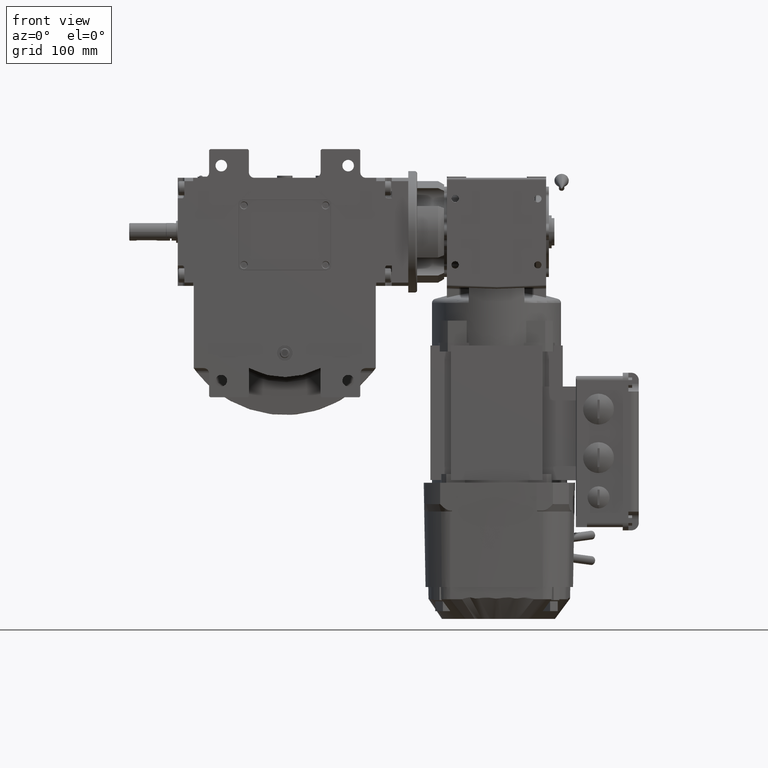
[diagram: clean part render]
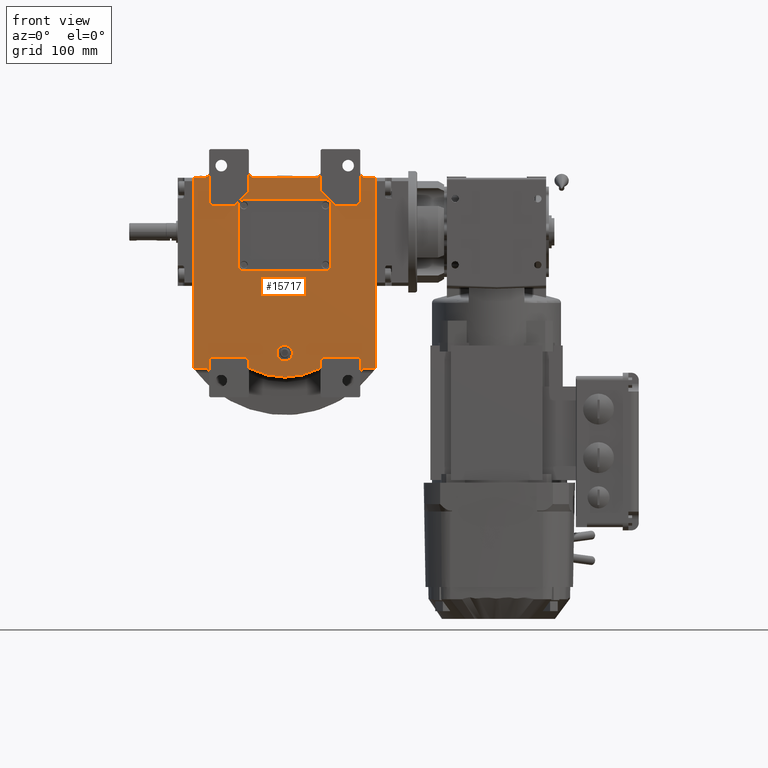
[diagram: same view with one face highlighted and labeled with its STEP entity id]
A machine part, front view. The second image highlights one B-rep face of the part: STEP entity #15717.
In plain terms, the highlighted planar face has unit normal (0, 1, 0).
Its self-contained STEP definition (entity closure, byte-faithful):
#612 = CIRCLE ( 'NONE', #55937, 5.000000000000004441 ) ;
#704 = EDGE_CURVE ( 'NONE', #13755, #52883, #28534, .T. ) ;
#706 = VECTOR ( 'NONE', #95900, 1000.000000000000000 ) ;
#1094 = CARTESIAN_POINT ( 'NONE',  ( -27.49999999999934630, -40.50000000000000000, 119.0000000000000000 ) ) ;
#1477 = VERTEX_POINT ( 'NONE', #34407 ) ;
#1659 = EDGE_CURVE ( 'NONE', #42896, #34868, #5289, .T. ) ;
#1828 = VERTEX_POINT ( 'NONE', #97926 ) ;
#2871 = EDGE_CURVE ( 'NONE', #18281, #86461, #612, .T. ) ;
#3174 = VERTEX_POINT ( 'NONE', #3788 ) ;
#3341 = EDGE_CURVE ( 'NONE', #1828, #23365, #74208, .T. ) ;
#3403 = VECTOR ( 'NONE', #47757, 1000.000000000000114 ) ;
#3512 = DIRECTION ( 'NONE',  ( -1.000000000000000000, 0.000000000000000000, 0.000000000000000000 ) ) ;
#3788 = CARTESIAN_POINT ( 'NONE',  ( 7.000000000000000000, -40.50000000000000000, -45.00000000000000000 ) ) ;
#3946 = CARTESIAN_POINT ( 'NONE',  ( -35.50000000000000000, -40.50000000000000000, -49.00000000000000000 ) ) ;
#4246 = CARTESIAN_POINT ( 'NONE',  ( 0.000000000000000000, -40.50000000000000000, 0.000000000000000000 ) ) ;
#5075 = CARTESIAN_POINT ( 'NONE',  ( 73.50000000000000000, -40.50000000000000000, -58.50000000000000000 ) ) ;
#5092 = LINE ( 'NONE', #36238, #70887 ) ;
#5106 = CARTESIAN_POINT ( 'NONE',  ( 32.50000000000000000, -40.50000000000000000, -52.00000000000000000 ) ) ;
#5254 = FACE_BOUND ( 'NONE', #48036, .T. ) ;
#5289 = LINE ( 'NONE', #41820, #13432 ) ;
#5448 = DIRECTION ( 'NONE',  ( 3.469446951953611033E-15, 0.000000000000000000, 1.000000000000000000 ) ) ;
#5611 = DIRECTION ( 'NONE',  ( 0.000000000000000000, 1.000000000000000000, 0.000000000000000000 ) ) ;
#6157 = EDGE_CURVE ( 'NONE', #8422, #43484, #75035, .T. ) ;
#6552 = ORIENTED_EDGE ( 'NONE', *, *, #64135, .F. ) ;
#6723 = EDGE_CURVE ( 'NONE', #76476, #23604, #77409, .T. ) ;
#7166 = CARTESIAN_POINT ( 'NONE',  ( 38.00000000000000000, -40.50000000000000000, 90.00000000000000000 ) ) ;
#8097 = CARTESIAN_POINT ( 'NONE',  ( -82.50000000000000000, -40.50000000000000000, -58.50000000000000000 ) ) ;
#8202 = ORIENTED_EDGE ( 'NONE', *, *, #16128, .F. ) ;
#8301 = EDGE_CURVE ( 'NONE', #39653, #19959, #31895, .T. ) ;
#8422 = VERTEX_POINT ( 'NONE', #19413 ) ;
#9866 = AXIS2_PLACEMENT_3D ( 'NONE', #27698, #20040, #61222 ) ;
#10457 = CIRCLE ( 'NONE', #23517, 5.000000000000004441 ) ;
#10478 = CIRCLE ( 'NONE', #72382, 4.999999999999997335 ) ;
#10839 = DIRECTION ( 'NONE',  ( -0.4628475282206227504, 0.000000000000000000, -0.8864379084967315414 ) ) ;
#10904 = DIRECTION ( 'NONE',  ( 0.000000000000000000, 1.000000000000000000, 0.000000000000000000 ) ) ;
#11249 = VERTEX_POINT ( 'NONE', #87641 ) ;
#11509 = AXIS2_PLACEMENT_3D ( 'NONE', #34271, #65394, #54523 ) ;
#11754 = VERTEX_POINT ( 'NONE', #38597 ) ;
#12053 = CARTESIAN_POINT ( 'NONE',  ( 38.00000000000000000, -40.50000000000000000, 30.00000000000000000 ) ) ;
#12075 = VECTOR ( 'NONE', #84942, 1000.000000000000000 ) ;
#12431 = EDGE_CURVE ( 'NONE', #86612, #3174, #16413, .T. ) ;
#12463 = AXIS2_PLACEMENT_3D ( 'NONE', #7166, #30134, #38294 ) ;
#12620 = ORIENTED_EDGE ( 'NONE', *, *, #6157, .T. ) ;
#12770 = CARTESIAN_POINT ( 'NONE',  ( 32.50000000000000000, -40.50000000000000000, -52.00000000000000000 ) ) ;
#12905 = CARTESIAN_POINT ( 'NONE',  ( -82.50000000000000000, -40.50000000000000000, 114.0000000000000000 ) ) ;
#13351 = VERTEX_POINT ( 'NONE', #99621 ) ;
#13432 = VECTOR ( 'NONE', #17852, 1000.000000000000000 ) ;
#13446 = ORIENTED_EDGE ( 'NONE', *, *, #79410, .T. ) ;
#13755 = VERTEX_POINT ( 'NONE', #85600 ) ;
#13823 = DIRECTION ( 'NONE',  ( 0.7071067811865474617, 0.000000000000000000, -0.7071067811865474617 ) ) ;
#14765 = ORIENTED_EDGE ( 'NONE', *, *, #90584, .F. ) ;
#15717 = ADVANCED_FACE ( 'NONE', ( #5254, #28249, #36407 ), #82354, .F. ) ;
#15998 = CARTESIAN_POINT ( 'NONE',  ( -68.50000000000000000, -40.50000000000000000, -50.00000000000000000 ) ) ;
#16128 = EDGE_CURVE ( 'NONE', #39653, #11754, #60250, .T. ) ;
#16338 = CARTESIAN_POINT ( 'NONE',  ( 68.50000000000000000, -40.50000000000000000, 119.0000000000000000 ) ) ;
#16412 = EDGE_LOOP ( 'NONE', ( #57634, #34677, #92000, #19398, #24635, #99576, #92109, #17602 ) ) ;
#16413 = CIRCLE ( 'NONE', #32747, 7.000000000000000000 ) ;
#16462 = DIRECTION ( 'NONE',  ( 0.000000000000000000, 1.000000000000000000, 0.000000000000000000 ) ) ;
#16804 = VERTEX_POINT ( 'NONE', #90957 ) ;
#16898 = LINE ( 'NONE', #73494, #67949 ) ;
#16978 = CARTESIAN_POINT ( 'NONE',  ( -73.50000000000000000, -40.50000000000000000, -63.50000000000000000 ) ) ;
#17025 = CARTESIAN_POINT ( 'NONE',  ( -32.50000000000000000, -40.50000000000000000, -58.56853585160510534 ) ) ;
#17269 = VECTOR ( 'NONE', #84965, 1000.000000000000000 ) ;
#17602 = ORIENTED_EDGE ( 'NONE', *, *, #21057, .F. ) ;
#17852 = DIRECTION ( 'NONE',  ( 1.000000000000000000, 0.000000000000000000, 0.000000000000000000 ) ) ;
#17968 = CARTESIAN_POINT ( 'NONE',  ( 35.50000000000000000, -40.50000000000000000, -49.00000000000000000 ) ) ;
#18161 = CIRCLE ( 'NONE', #67034, 7.000000000000000000 ) ;
#18278 = VERTEX_POINT ( 'NONE', #44472 ) ;
#18281 = VERTEX_POINT ( 'NONE', #89389 ) ;
#18428 = VERTEX_POINT ( 'NONE', #99574 ) ;
#18579 = VECTOR ( 'NONE', #39847, 1000.000000000000000 ) ;
#18646 = DIRECTION ( 'NONE',  ( -1.734723475976807094E-15, 0.000000000000000000, -1.000000000000000000 ) ) ;
#19009 = CARTESIAN_POINT ( 'NONE',  ( -45.49999999999939604, -40.50000000000000000, 89.00000000000000000 ) ) ;
#19336 = VERTEX_POINT ( 'NONE', #78758 ) ;
#19398 = ORIENTED_EDGE ( 'NONE', *, *, #63770, .F. ) ;
#19413 = CARTESIAN_POINT ( 'NONE',  ( -32.50000000000000000, -40.50000000000000000, -58.56853585160510534 ) ) ;
#19612 = CARTESIAN_POINT ( 'NONE',  ( -82.50000000000000000, -40.50000000000000000, -58.50000000000000000 ) ) ;
#19934 = CARTESIAN_POINT ( 'NONE',  ( -73.50000000000000000, -40.50000000000000000, -58.50000000000000000 ) ) ;
#19959 = VERTEX_POINT ( 'NONE', #80136 ) ;
#20040 = DIRECTION ( 'NONE',  ( 0.000000000000000000, 1.000000000000000000, 0.000000000000000000 ) ) ;
#20069 = AXIS2_PLACEMENT_3D ( 'NONE', #59550, #51391, #5448 ) ;
#20125 = VECTOR ( 'NONE', #97323, 1000.000000000000000 ) ;
#20255 = ORIENTED_EDGE ( 'NONE', *, *, #85701, .F. ) ;
#21057 = EDGE_CURVE ( 'NONE', #56482, #23027, #53936, .T. ) ;
#21132 = DIRECTION ( 'NONE',  ( 0.7071067811865474617, 0.000000000000000000, -0.7071067811865474617 ) ) ;
#21444 = DIRECTION ( 'NONE',  ( 0.000000000000000000, 0.000000000000000000, -1.000000000000000000 ) ) ;
#21560 = LINE ( 'NONE', #52667, #74114 ) ;
#21773 = DIRECTION ( 'NONE',  ( 0.000000000000000000, 1.000000000000000000, 0.000000000000000000 ) ) ;
#22136 = DIRECTION ( 'NONE',  ( 1.000000000000000000, 0.000000000000000000, 0.000000000000000000 ) ) ;
#22703 = ORIENTED_EDGE ( 'NONE', *, *, #6723, .T. ) ;
#22738 = CIRCLE ( 'NONE', #92797, 5.000000000000004441 ) ;
#23027 = VERTEX_POINT ( 'NONE', #48046 ) ;
#23365 = VERTEX_POINT ( 'NONE', #83220 ) ;
#23432 = VECTOR ( 'NONE', #96571, 1000.000000000000000 ) ;
#23517 = AXIS2_PLACEMENT_3D ( 'NONE', #30115, #5611, #21444 ) ;
#23604 = VERTEX_POINT ( 'NONE', #94843 ) ;
#23656 = DIRECTION ( 'NONE',  ( 0.000000000000000000, -1.000000000000000000, 0.000000000000000000 ) ) ;
#24335 = VERTEX_POINT ( 'NONE', #42929 ) ;
#24557 = DIRECTION ( 'NONE',  ( -0.7071067811865474617, 0.000000000000000000, -0.7071067811865474617 ) ) ;
#24635 = ORIENTED_EDGE ( 'NONE', *, *, #704, .F. ) ;
#25173 = VECTOR ( 'NONE', #90436, 1000.000000000000114 ) ;
#25331 = LINE ( 'NONE', #56426, #37667 ) ;
#26013 = EDGE_CURVE ( 'NONE', #3174, #86612, #18161, .T. ) ;
#26718 = ORIENTED_EDGE ( 'NONE', *, *, #84441, .T. ) ;
#26924 = EDGE_CURVE ( 'NONE', #76476, #87357, #52733, .T. ) ;
#27231 = ORIENTED_EDGE ( 'NONE', *, *, #84753, .T. ) ;
#27607 = CARTESIAN_POINT ( 'NONE',  ( 32.49999999999934630, -40.50000000000000000, 102.0000000000000000 ) ) ;
#27698 = CARTESIAN_POINT ( 'NONE',  ( 33.32502203188480649, -40.50000000000000000, -63.50000000000000000 ) ) ;
#28029 = CARTESIAN_POINT ( 'NONE',  ( -82.50000000000000000, -40.50000000000000000, -58.50000000000000000 ) ) ;
#28249 = FACE_OUTER_BOUND ( 'NONE', #55524, .T. ) ;
#28441 = ORIENTED_EDGE ( 'NONE', *, *, #26924, .F. ) ;
#28534 = LINE ( 'NONE', #97909, #66633 ) ;
#28598 = VERTEX_POINT ( 'NONE', #16338 ) ;
#28670 = ORIENTED_EDGE ( 'NONE', *, *, #46491, .F. ) ;
#28913 = AXIS2_PLACEMENT_3D ( 'NONE', #34887, #10904, #72139 ) ;
#30115 = CARTESIAN_POINT ( 'NONE',  ( 73.50000000000000000, -40.50000000000000000, 119.0000000000000000 ) ) ;
#30134 = DIRECTION ( 'NONE',  ( 0.000000000000000000, -1.000000000000000000, 0.000000000000000000 ) ) ;
#31090 = CIRCLE ( 'NONE', #9866, 5.000000000000150990 ) ;
#31341 = EDGE_CURVE ( 'NONE', #16804, #84495, #25331, .T. ) ;
#31525 = ORIENTED_EDGE ( 'NONE', *, *, #79213, .F. ) ;
#31619 = VERTEX_POINT ( 'NONE', #71614 ) ;
#31895 = CIRCLE ( 'NONE', #45178, 5.000000000000004441 ) ;
#32158 = VECTOR ( 'NONE', #32318, 1000.000000000000000 ) ;
#32168 = CARTESIAN_POINT ( 'NONE',  ( 32.49999999999934630, -40.50000000000000000, 119.0000000000000000 ) ) ;
#32318 = DIRECTION ( 'NONE',  ( 0.000000000000000000, 0.000000000000000000, -1.000000000000000000 ) ) ;
#32747 = AXIS2_PLACEMENT_3D ( 'NONE', #45391, #78016, #77032 ) ;
#32853 = VERTEX_POINT ( 'NONE', #92389 ) ;
#33006 = LINE ( 'NONE', #78452, #90958 ) ;
#33183 = ORIENTED_EDGE ( 'NONE', *, *, #70877, .F. ) ;
#34271 = CARTESIAN_POINT ( 'NONE',  ( -33.32502203188484913, -40.50000000000000000, -63.50000000000000000 ) ) ;
#34407 = CARTESIAN_POINT ( 'NONE',  ( -73.50000000000000000, -40.50000000000000000, 114.0000000000000000 ) ) ;
#34428 = EDGE_CURVE ( 'NONE', #83368, #60134, #89254, .T. ) ;
#34677 = ORIENTED_EDGE ( 'NONE', *, *, #35595, .F. ) ;
#34685 = VERTEX_POINT ( 'NONE', #93280 ) ;
#34868 = VERTEX_POINT ( 'NONE', #99321 ) ;
#34887 = CARTESIAN_POINT ( 'NONE',  ( 27.49999999999934630, -40.50000000000000000, 119.0000000000000000 ) ) ;
#35374 = DIRECTION ( 'NONE',  ( 1.000000000000000000, 0.000000000000000000, 0.000000000000000000 ) ) ;
#35595 = EDGE_CURVE ( 'NONE', #13351, #24335, #39658, .T. ) ;
#35765 = AXIS2_PLACEMENT_3D ( 'NONE', #49622, #43486, #10839 ) ;
#36238 = CARTESIAN_POINT ( 'NONE',  ( -38.00000000000000000, -40.50000000000000000, 30.00000000000000000 ) ) ;
#36254 = DIRECTION ( 'NONE',  ( 0.000000000000000000, 0.000000000000000000, -1.000000000000000000 ) ) ;
#36342 = ORIENTED_EDGE ( 'NONE', *, *, #31341, .F. ) ;
#36407 = FACE_BOUND ( 'NONE', #16412, .T. ) ;
#36756 = EDGE_CURVE ( 'NONE', #23027, #46021, #21560, .T. ) ;
#36994 = EDGE_CURVE ( 'NONE', #24335, #56482, #5092, .T. ) ;
#37068 = CARTESIAN_POINT ( 'NONE',  ( 73.50000000000000000, -40.50000000000000000, -63.50000000000000000 ) ) ;
#37667 = VECTOR ( 'NONE', #87578, 1000.000000000000000 ) ;
#38294 = DIRECTION ( 'NONE',  ( 1.000000000000000000, 0.000000000000000000, 3.469446951953617344E-15 ) ) ;
#38299 = EDGE_CURVE ( 'NONE', #51361, #32853, #75031, .T. ) ;
#38402 = DIRECTION ( 'NONE',  ( 0.000000000000000000, 0.000000000000000000, -1.000000000000000000 ) ) ;
#38496 = VECTOR ( 'NONE', #90362, 1000.000000000000000 ) ;
#38597 = CARTESIAN_POINT ( 'NONE',  ( 27.49999999999934630, -40.50000000000000000, 114.0000000000000000 ) ) ;
#39176 = DIRECTION ( 'NONE',  ( 1.000000000000000000, 0.000000000000000000, 0.000000000000000000 ) ) ;
#39216 = CARTESIAN_POINT ( 'NONE',  ( -31.01078439078175109, -40.50000000000000000, -59.06781045751629478 ) ) ;
#39349 = ORIENTED_EDGE ( 'NONE', *, *, #89830, .T. ) ;
#39616 = EDGE_CURVE ( 'NONE', #18278, #41538, #92372, .T. ) ;
#39624 = VECTOR ( 'NONE', #13823, 1000.000000000000114 ) ;
#39653 = VERTEX_POINT ( 'NONE', #62248 ) ;
#39658 = CIRCLE ( 'NONE', #52704, 3.999999999999996447 ) ;
#39750 = ORIENTED_EDGE ( 'NONE', *, *, #72798, .T. ) ;
#39847 = DIRECTION ( 'NONE',  ( 0.000000000000000000, 0.000000000000000000, -1.000000000000000000 ) ) ;
#39956 = CARTESIAN_POINT ( 'NONE',  ( -65.50000000000000000, -40.50000000000000000, 89.00000000000000000 ) ) ;
#39994 = LINE ( 'NONE', #15998, #71416 ) ;
#40163 = ORIENTED_EDGE ( 'NONE', *, *, #94047, .F. ) ;
#40569 = CARTESIAN_POINT ( 'NONE',  ( 73.50000000000000000, -40.50000000000000000, 114.0000000000000000 ) ) ;
#41538 = VERTEX_POINT ( 'NONE', #17968 ) ;
#41820 = CARTESIAN_POINT ( 'NONE',  ( 45.49999999999939604, -40.50000000000000000, 89.00000000000000000 ) ) ;
#41863 = DIRECTION ( 'NONE',  ( 1.000000000000000000, 0.000000000000000000, 0.000000000000000000 ) ) ;
#42477 = CARTESIAN_POINT ( 'NONE',  ( 45.49999999999939604, -40.50000000000000000, 89.00000000000000000 ) ) ;
#42749 = LINE ( 'NONE', #3946, #20125 ) ;
#42896 = VERTEX_POINT ( 'NONE', #42477 ) ;
#42928 = ORIENTED_EDGE ( 'NONE', *, *, #3341, .T. ) ;
#42929 = CARTESIAN_POINT ( 'NONE',  ( -38.00000000000000000, -40.50000000000000000, 30.00000000000000000 ) ) ;
#43484 = VERTEX_POINT ( 'NONE', #39216 ) ;
#43486 = DIRECTION ( 'NONE',  ( 0.000000000000000000, -1.000000000000000000, 0.000000000000000000 ) ) ;
#43626 = CARTESIAN_POINT ( 'NONE',  ( 38.00000000000000000, -40.50000000000000000, 34.00000000000000000 ) ) ;
#43812 = EDGE_CURVE ( 'NONE', #1828, #31619, #42749, .T. ) ;
#43814 = CARTESIAN_POINT ( 'NONE',  ( -82.50000000000000000, -40.50000000000000000, 114.0000000000000000 ) ) ;
#43835 = LINE ( 'NONE', #59637, #55036 ) ;
#43909 = ORIENTED_EDGE ( 'NONE', *, *, #39616, .F. ) ;
#44087 = CARTESIAN_POINT ( 'NONE',  ( -35.50000000000000000, -40.50000000000000000, -49.00000000000000000 ) ) ;
#44088 = DIRECTION ( 'NONE',  ( 1.000000000000000000, 0.000000000000000000, 0.000000000000000000 ) ) ;
#44397 = ORIENTED_EDGE ( 'NONE', *, *, #1659, .F. ) ;
#44472 = CARTESIAN_POINT ( 'NONE',  ( 67.50000000000000000, -40.50000000000000000, -49.00000000000000000 ) ) ;
#44658 = VECTOR ( 'NONE', #44088, 1000.000000000000000 ) ;
#45178 = AXIS2_PLACEMENT_3D ( 'NONE', #1094, #85355, #38402 ) ;
#45391 = CARTESIAN_POINT ( 'NONE',  ( 4.440892098500625176E-16, -40.50000000000000000, -45.00000000000000000 ) ) ;
#46021 = VERTEX_POINT ( 'NONE', #81600 ) ;
#46242 = VECTOR ( 'NONE', #82282, 1000.000000000000114 ) ;
#46457 = ORIENTED_EDGE ( 'NONE', *, *, #59204, .T. ) ;
#46491 = EDGE_CURVE ( 'NONE', #18281, #76123, #67549, .T. ) ;
#46649 = LINE ( 'NONE', #17025, #12075 ) ;
#46702 = CIRCLE ( 'NONE', #12463, 3.999999999999996447 ) ;
#46996 = CARTESIAN_POINT ( 'NONE',  ( -42.00000000000000000, -40.50000000000000000, 90.00000000000000000 ) ) ;
#47100 = VECTOR ( 'NONE', #22136, 1000.000000000000000 ) ;
#47139 = DIRECTION ( 'NONE',  ( 0.7071067811865474617, 0.000000000000000000, 0.7071067811865474617 ) ) ;
#47757 = DIRECTION ( 'NONE',  ( -0.7071067811865474617, 0.000000000000000000, 0.7071067811865474617 ) ) ;
#48036 = EDGE_LOOP ( 'NONE', ( #54089, #53606 ) ) ;
#48046 = CARTESIAN_POINT ( 'NONE',  ( 42.00000000000000000, -40.50000000000000000, 34.00000000000000000 ) ) ;
#48051 = CARTESIAN_POINT ( 'NONE',  ( -68.50000000000000000, -40.50000000000000000, -50.00000000000000000 ) ) ;
#48388 = CARTESIAN_POINT ( 'NONE',  ( 32.49999999999934630, -40.50000000000000000, 119.0000000000000000 ) ) ;
#49622 = CARTESIAN_POINT ( 'NONE',  ( -1.421085471520200056E-14, -40.50000000000000000, 0.3235294117646605461 ) ) ;
#49740 = VECTOR ( 'NONE', #69587, 1000.000000000000000 ) ;
#50450 = LINE ( 'NONE', #43814, #73923 ) ;
#50464 = CIRCLE ( 'NONE', #35765, 67.00000000000004263 ) ;
#50752 = EDGE_CURVE ( 'NONE', #99291, #31619, #39994, .T. ) ;
#51033 = ORIENTED_EDGE ( 'NONE', *, *, #84321, .F. ) ;
#51147 = VECTOR ( 'NONE', #21132, 1000.000000000000114 ) ;
#51361 = VERTEX_POINT ( 'NONE', #12770 ) ;
#51391 = DIRECTION ( 'NONE',  ( 0.000000000000000000, -1.000000000000000000, 0.000000000000000000 ) ) ;
#51857 = DIRECTION ( 'NONE',  ( -1.000000000000000000, 0.000000000000000000, 0.000000000000000000 ) ) ;
#52217 = DIRECTION ( 'NONE',  ( 0.000000000000000000, 0.000000000000000000, 1.000000000000000000 ) ) ;
#52667 = CARTESIAN_POINT ( 'NONE',  ( 42.00000000000000000, -40.50000000000000000, 34.00000000000000000 ) ) ;
#52704 = AXIS2_PLACEMENT_3D ( 'NONE', #93552, #23656, #54748 ) ;
#52733 = LINE ( 'NONE', #76213, #47100 ) ;
#52883 = VERTEX_POINT ( 'NONE', #67885 ) ;
#53147 = DIRECTION ( 'NONE',  ( 0.000000000000000000, 1.000000000000000000, 0.000000000000000000 ) ) ;
#53475 = DIRECTION ( 'NONE',  ( 0.000000000000000000, -1.000000000000000000, 0.000000000000000000 ) ) ;
#53606 = ORIENTED_EDGE ( 'NONE', *, *, #12431, .F. ) ;
#53936 = CIRCLE ( 'NONE', #89766, 4.000000000000000000 ) ;
#53972 = CARTESIAN_POINT ( 'NONE',  ( -4.440892098500625176E-16, -40.50000000000000000, -45.00000000000000000 ) ) ;
#54089 = ORIENTED_EDGE ( 'NONE', *, *, #26013, .F. ) ;
#54523 = DIRECTION ( 'NONE',  ( 0.1650044063769659508, 0.000000000000000000, 0.9862928296789877924 ) ) ;
#54574 = DIRECTION ( 'NONE',  ( -1.000000000000000000, 0.000000000000000000, 0.000000000000000000 ) ) ;
#54575 = EDGE_CURVE ( 'NONE', #84495, #86461, #78552, .T. ) ;
#54748 = DIRECTION ( 'NONE',  ( -1.000000000000000000, 0.000000000000000000, 0.000000000000000000 ) ) ;
#55036 = VECTOR ( 'NONE', #89246, 1000.000000000000000 ) ;
#55123 = ORIENTED_EDGE ( 'NONE', *, *, #82917, .F. ) ;
#55227 = ORIENTED_EDGE ( 'NONE', *, *, #43812, .F. ) ;
#55247 = LINE ( 'NONE', #61432, #49740 ) ;
#55524 = EDGE_LOOP ( 'NONE', ( #85339, #81261, #36342, #51033, #13446, #20255, #77479, #44397, #40163, #55123, #39349, #8202, #63802, #33183, #6552, #28441, #22703, #14765, #92808, #67095, #98407, #26718, #27231, #94367, #67717, #55227, #42928, #31525, #12620, #39750, #46457, #66598, #57212, #43909, #70288, #28670 ) ) ;
#55873 = CARTESIAN_POINT ( 'NONE',  ( 73.50000000000000000, -40.50000000000000000, 114.0000000000000000 ) ) ;
#55879 = CIRCLE ( 'NONE', #20069, 4.000000000000003553 ) ;
#55893 = CARTESIAN_POINT ( 'NONE',  ( -65.50000000000000000, -40.50000000000000000, 89.00000000000000000 ) ) ;
#55937 = AXIS2_PLACEMENT_3D ( 'NONE', #37068, #21773, #51857 ) ;
#56426 = CARTESIAN_POINT ( 'NONE',  ( 82.50000000000000000, -40.50000000000000000, 114.0000000000000000 ) ) ;
#56482 = VERTEX_POINT ( 'NONE', #12053 ) ;
#56761 = CARTESIAN_POINT ( 'NONE',  ( -68.50000000000000000, -40.50000000000000000, 119.0000000000000000 ) ) ;
#57212 = ORIENTED_EDGE ( 'NONE', *, *, #62690, .T. ) ;
#57634 = ORIENTED_EDGE ( 'NONE', *, *, #36994, .F. ) ;
#58037 = VECTOR ( 'NONE', #52217, 1000.000000000000000 ) ;
#58890 = LINE ( 'NONE', #19612, #44658 ) ;
#59204 = EDGE_CURVE ( 'NONE', #18428, #32853, #31090, .T. ) ;
#59300 = CARTESIAN_POINT ( 'NONE',  ( 67.50000000000000000, -40.50000000000000000, -49.00000000000000000 ) ) ;
#59356 = DIRECTION ( 'NONE',  ( -0.000000000000000000, 1.000000000000000000, 0.000000000000000000 ) ) ;
#59550 = CARTESIAN_POINT ( 'NONE',  ( -38.00000000000000000, -40.50000000000000000, 90.00000000000000000 ) ) ;
#59637 = CARTESIAN_POINT ( 'NONE',  ( -32.49999999999934630, -40.50000000000000000, 102.0000000000000000 ) ) ;
#60134 = VERTEX_POINT ( 'NONE', #12905 ) ;
#60250 = LINE ( 'NONE', #65868, #38496 ) ;
#60819 = CARTESIAN_POINT ( 'NONE',  ( -73.50000000000000000, -40.50000000000000000, 119.0000000000000000 ) ) ;
#61222 = DIRECTION ( 'NONE',  ( -0.4628475282206209185, 0.000000000000000000, 0.8864379084967325406 ) ) ;
#61432 = CARTESIAN_POINT ( 'NONE',  ( 68.50000000000000000, -40.50000000000000000, 92.00000000000000000 ) ) ;
#62248 = CARTESIAN_POINT ( 'NONE',  ( -27.49999999999934630, -40.50000000000000000, 114.0000000000000000 ) ) ;
#62339 = DIRECTION ( 'NONE',  ( 0.000000000000000000, 0.000000000000000000, 1.000000000000000000 ) ) ;
#62690 = EDGE_CURVE ( 'NONE', #51361, #41538, #66411, .T. ) ;
#63423 = CARTESIAN_POINT ( 'NONE',  ( -42.00000000000000000, -40.50000000000000000, 90.00000000000000000 ) ) ;
#63770 = EDGE_CURVE ( 'NONE', #52883, #73127, #55879, .T. ) ;
#63802 = ORIENTED_EDGE ( 'NONE', *, *, #8301, .T. ) ;
#63865 = VERTEX_POINT ( 'NONE', #56761 ) ;
#64135 = EDGE_CURVE ( 'NONE', #87357, #19336, #80770, .T. ) ;
#65077 = EDGE_CURVE ( 'NONE', #18278, #76123, #81278, .T. ) ;
#65394 = DIRECTION ( 'NONE',  ( 0.000000000000000000, 1.000000000000000000, 0.000000000000000000 ) ) ;
#65868 = CARTESIAN_POINT ( 'NONE',  ( -27.49999999999934630, -40.50000000000000000, 114.0000000000000000 ) ) ;
#66254 = DIRECTION ( 'NONE',  ( 1.000000000000000000, 0.000000000000000000, 0.000000000000000000 ) ) ;
#66411 = LINE ( 'NONE', #81772, #46242 ) ;
#66598 = ORIENTED_EDGE ( 'NONE', *, *, #38299, .F. ) ;
#66633 = VECTOR ( 'NONE', #3512, 1000.000000000000000 ) ;
#67034 = AXIS2_PLACEMENT_3D ( 'NONE', #53972, #53475, #39176 ) ;
#67095 = ORIENTED_EDGE ( 'NONE', *, *, #94461, .F. ) ;
#67549 = LINE ( 'NONE', #100676, #58037 ) ;
#67717 = ORIENTED_EDGE ( 'NONE', *, *, #50752, .T. ) ;
#67793 = EDGE_CURVE ( 'NONE', #99291, #11249, #88325, .T. ) ;
#67885 = CARTESIAN_POINT ( 'NONE',  ( -38.00000000000000000, -40.50000000000000000, 94.00000000000000000 ) ) ;
#67949 = VECTOR ( 'NONE', #24557, 1000.000000000000114 ) ;
#67957 = VERTEX_POINT ( 'NONE', #19934 ) ;
#68085 = EDGE_CURVE ( 'NONE', #46021, #13755, #46702, .T. ) ;
#69587 = DIRECTION ( 'NONE',  ( 0.000000000000000000, 0.000000000000000000, 1.000000000000000000 ) ) ;
#70288 = ORIENTED_EDGE ( 'NONE', *, *, #65077, .T. ) ;
#70877 = EDGE_CURVE ( 'NONE', #19336, #19959, #43835, .T. ) ;
#70887 = VECTOR ( 'NONE', #41863, 1000.000000000000000 ) ;
#71074 = CARTESIAN_POINT ( 'NONE',  ( 32.49999999999934630, -40.50000000000000000, 102.0000000000000000 ) ) ;
#71416 = VECTOR ( 'NONE', #47139, 1000.000000000000114 ) ;
#71614 = CARTESIAN_POINT ( 'NONE',  ( -67.50000000000000000, -40.50000000000000000, -49.00000000000000000 ) ) ;
#72063 = CARTESIAN_POINT ( 'NONE',  ( -68.50000000000000000, -40.50000000000000000, -50.00000000000000000 ) ) ;
#72139 = DIRECTION ( 'NONE',  ( 1.000000000000000000, 0.000000000000000000, 0.000000000000000000 ) ) ;
#72382 = AXIS2_PLACEMENT_3D ( 'NONE', #16978, #16462, #95537 ) ;
#72705 = VECTOR ( 'NONE', #36254, 1000.000000000000000 ) ;
#72798 = EDGE_CURVE ( 'NONE', #43484, #18428, #50464, .T. ) ;
#72889 = EDGE_CURVE ( 'NONE', #63865, #1477, #22738, .T. ) ;
#73127 = VERTEX_POINT ( 'NONE', #46996 ) ;
#73494 = CARTESIAN_POINT ( 'NONE',  ( 68.50000000000000000, -40.50000000000000000, 92.00000000000000000 ) ) ;
#73923 = VECTOR ( 'NONE', #66254, 1000.000000000000000 ) ;
#74114 = VECTOR ( 'NONE', #62339, 1000.000000000000000 ) ;
#74208 = LINE ( 'NONE', #44087, #51147 ) ;
#74236 = DIRECTION ( 'NONE',  ( 0.000000000000000000, -1.000000000000000000, 0.000000000000000000 ) ) ;
#75031 = LINE ( 'NONE', #5106, #72705 ) ;
#75035 = CIRCLE ( 'NONE', #11509, 5.000000000000000000 ) ;
#75648 = CARTESIAN_POINT ( 'NONE',  ( -45.49999999999939604, -40.50000000000000000, 89.00000000000000000 ) ) ;
#76123 = VERTEX_POINT ( 'NONE', #89013 ) ;
#76213 = CARTESIAN_POINT ( 'NONE',  ( -65.50000000000000000, -40.50000000000000000, 89.00000000000000000 ) ) ;
#76476 = VERTEX_POINT ( 'NONE', #39956 ) ;
#77032 = DIRECTION ( 'NONE',  ( -1.000000000000000000, 0.000000000000000000, 0.000000000000000000 ) ) ;
#77409 = LINE ( 'NONE', #55893, #3403 ) ;
#77479 = ORIENTED_EDGE ( 'NONE', *, *, #87591, .T. ) ;
#77555 = AXIS2_PLACEMENT_3D ( 'NONE', #4246, #59356, #35374 ) ;
#77581 = CARTESIAN_POINT ( 'NONE',  ( 67.50000000000000000, -40.50000000000000000, -49.00000000000000000 ) ) ;
#78016 = DIRECTION ( 'NONE',  ( 0.000000000000000000, -1.000000000000000000, 0.000000000000000000 ) ) ;
#78452 = CARTESIAN_POINT ( 'NONE',  ( -68.50000000000000000, -40.50000000000000000, 119.0000000000000000 ) ) ;
#78552 = LINE ( 'NONE', #88201, #97881 ) ;
#78758 = CARTESIAN_POINT ( 'NONE',  ( -32.49999999999934630, -40.50000000000000000, 102.0000000000000000 ) ) ;
#79213 = EDGE_CURVE ( 'NONE', #8422, #23365, #46649, .T. ) ;
#79410 = EDGE_CURVE ( 'NONE', #82904, #28598, #10457, .T. ) ;
#79863 = LINE ( 'NONE', #40569, #82116 ) ;
#80136 = CARTESIAN_POINT ( 'NONE',  ( -32.49999999999934630, -40.50000000000000000, 119.0000000000000000 ) ) ;
#80770 = LINE ( 'NONE', #19009, #23432 ) ;
#81261 = ORIENTED_EDGE ( 'NONE', *, *, #54575, .F. ) ;
#81278 = LINE ( 'NONE', #59300, #25173 ) ;
#81600 = CARTESIAN_POINT ( 'NONE',  ( 42.00000000000000000, -40.50000000000000000, 90.00000000000000000 ) ) ;
#81772 = CARTESIAN_POINT ( 'NONE',  ( 32.50000000000000000, -40.50000000000000000, -52.00000000000000000 ) ) ;
#82116 = VECTOR ( 'NONE', #96673, 1000.000000000000000 ) ;
#82282 = DIRECTION ( 'NONE',  ( 0.7071067811865474617, 0.000000000000000000, 0.7071067811865474617 ) ) ;
#82354 = PLANE ( 'NONE',  #77555 ) ;
#82399 = CARTESIAN_POINT ( 'NONE',  ( 82.50000000000000000, -40.50000000000000000, -58.50000000000000000 ) ) ;
#82904 = VERTEX_POINT ( 'NONE', #55873 ) ;
#82917 = EDGE_CURVE ( 'NONE', #100787, #100186, #85795, .T. ) ;
#83220 = CARTESIAN_POINT ( 'NONE',  ( -32.50000000000000000, -40.50000000000000000, -52.00000000000000000 ) ) ;
#83368 = VERTEX_POINT ( 'NONE', #8097 ) ;
#83750 = LINE ( 'NONE', #27607, #39624 ) ;
#84321 = EDGE_CURVE ( 'NONE', #82904, #16804, #79863, .T. ) ;
#84441 = EDGE_CURVE ( 'NONE', #83368, #67957, #58890, .T. ) ;
#84495 = VERTEX_POINT ( 'NONE', #82399 ) ;
#84753 = EDGE_CURVE ( 'NONE', #67957, #11249, #10478, .T. ) ;
#84942 = DIRECTION ( 'NONE',  ( 0.000000000000000000, 0.000000000000000000, 1.000000000000000000 ) ) ;
#84965 = DIRECTION ( 'NONE',  ( 0.000000000000000000, 0.000000000000000000, -1.000000000000000000 ) ) ;
#85339 = ORIENTED_EDGE ( 'NONE', *, *, #2871, .T. ) ;
#85355 = DIRECTION ( 'NONE',  ( 0.000000000000000000, 1.000000000000000000, 0.000000000000000000 ) ) ;
#85600 = CARTESIAN_POINT ( 'NONE',  ( 38.00000000000000000, -40.50000000000000000, 94.00000000000000000 ) ) ;
#85701 = EDGE_CURVE ( 'NONE', #34685, #28598, #55247, .T. ) ;
#85795 = LINE ( 'NONE', #32168, #18579 ) ;
#86461 = VERTEX_POINT ( 'NONE', #5075 ) ;
#86612 = VERTEX_POINT ( 'NONE', #99476 ) ;
#87357 = VERTEX_POINT ( 'NONE', #75648 ) ;
#87578 = DIRECTION ( 'NONE',  ( -1.647635329298784785E-16, 0.000000000000000000, -1.000000000000000000 ) ) ;
#87591 = EDGE_CURVE ( 'NONE', #34685, #34868, #16898, .T. ) ;
#87600 = DIRECTION ( 'NONE',  ( 0.000000000000000000, 0.000000000000000000, -1.000000000000000000 ) ) ;
#87641 = CARTESIAN_POINT ( 'NONE',  ( -68.50000000000000000, -40.50000000000000000, -63.50000000000000000 ) ) ;
#88201 = CARTESIAN_POINT ( 'NONE',  ( 82.50000000000000000, -40.50000000000000000, -58.50000000000000000 ) ) ;
#88325 = LINE ( 'NONE', #48051, #17269 ) ;
#89013 = CARTESIAN_POINT ( 'NONE',  ( 68.50000000000000000, -40.50000000000000000, -50.00000000000000000 ) ) ;
#89246 = DIRECTION ( 'NONE',  ( 0.000000000000000000, 0.000000000000000000, 1.000000000000000000 ) ) ;
#89254 = LINE ( 'NONE', #28029, #706 ) ;
#89389 = CARTESIAN_POINT ( 'NONE',  ( 68.50000000000000000, -40.50000000000000000, -63.50000000000000000 ) ) ;
#89766 = AXIS2_PLACEMENT_3D ( 'NONE', #43626, #74236, #18646 ) ;
#89830 = EDGE_CURVE ( 'NONE', #100787, #11754, #95679, .T. ) ;
#90362 = DIRECTION ( 'NONE',  ( 1.000000000000000000, 0.000000000000000000, 0.000000000000000000 ) ) ;
#90436 = DIRECTION ( 'NONE',  ( 0.7071067811865474617, 0.000000000000000000, -0.7071067811865474617 ) ) ;
#90584 = EDGE_CURVE ( 'NONE', #63865, #23604, #33006, .T. ) ;
#90957 = CARTESIAN_POINT ( 'NONE',  ( 82.50000000000000000, -40.50000000000000000, 114.0000000000000000 ) ) ;
#90958 = VECTOR ( 'NONE', #87600, 1000.000000000000000 ) ;
#91949 = DIRECTION ( 'NONE',  ( 1.000000000000000000, 0.000000000000000000, 0.000000000000000000 ) ) ;
#92000 = ORIENTED_EDGE ( 'NONE', *, *, #100214, .F. ) ;
#92109 = ORIENTED_EDGE ( 'NONE', *, *, #36756, .F. ) ;
#92372 = LINE ( 'NONE', #77581, #95653 ) ;
#92389 = CARTESIAN_POINT ( 'NONE',  ( 32.50000000000000000, -40.50000000000000000, -58.56853585160510534 ) ) ;
#92797 = AXIS2_PLACEMENT_3D ( 'NONE', #60819, #53147, #91949 ) ;
#92808 = ORIENTED_EDGE ( 'NONE', *, *, #72889, .T. ) ;
#93280 = CARTESIAN_POINT ( 'NONE',  ( 68.50000000000000000, -40.50000000000000000, 92.00000000000000000 ) ) ;
#93552 = CARTESIAN_POINT ( 'NONE',  ( -38.00000000000000000, -40.50000000000000000, 34.00000000000000000 ) ) ;
#94047 = EDGE_CURVE ( 'NONE', #100186, #42896, #83750, .T. ) ;
#94333 = DIRECTION ( 'NONE',  ( -1.000000000000000000, 0.000000000000000000, 0.000000000000000000 ) ) ;
#94367 = ORIENTED_EDGE ( 'NONE', *, *, #67793, .F. ) ;
#94461 = EDGE_CURVE ( 'NONE', #60134, #1477, #50450, .T. ) ;
#94843 = CARTESIAN_POINT ( 'NONE',  ( -68.50000000000000000, -40.50000000000000000, 92.00000000000000000 ) ) ;
#95537 = DIRECTION ( 'NONE',  ( 0.000000000000000000, 0.000000000000000000, 1.000000000000000000 ) ) ;
#95565 = LINE ( 'NONE', #63423, #32158 ) ;
#95653 = VECTOR ( 'NONE', #54574, 1000.000000000000000 ) ;
#95679 = CIRCLE ( 'NONE', #28913, 5.000000000000000888 ) ;
#95900 = DIRECTION ( 'NONE',  ( 0.000000000000000000, 0.000000000000000000, 1.000000000000000000 ) ) ;
#96571 = DIRECTION ( 'NONE',  ( 0.7071067811865480168, 0.000000000000000000, 0.7071067811865470176 ) ) ;
#96673 = DIRECTION ( 'NONE',  ( 1.000000000000000000, 0.000000000000000000, 0.000000000000000000 ) ) ;
#97323 = DIRECTION ( 'NONE',  ( -1.000000000000000000, 0.000000000000000000, 0.000000000000000000 ) ) ;
#97881 = VECTOR ( 'NONE', #94333, 1000.000000000000000 ) ;
#97909 = CARTESIAN_POINT ( 'NONE',  ( 38.00000000000000000, -40.50000000000000000, 94.00000000000000000 ) ) ;
#97926 = CARTESIAN_POINT ( 'NONE',  ( -35.50000000000000000, -40.50000000000000000, -49.00000000000000000 ) ) ;
#98407 = ORIENTED_EDGE ( 'NONE', *, *, #34428, .F. ) ;
#99291 = VERTEX_POINT ( 'NONE', #72063 ) ;
#99321 = CARTESIAN_POINT ( 'NONE',  ( 65.50000000000000000, -40.50000000000000000, 89.00000000000000000 ) ) ;
#99476 = CARTESIAN_POINT ( 'NONE',  ( -7.000000000000000000, -40.50000000000000000, -45.00000000000000000 ) ) ;
#99574 = CARTESIAN_POINT ( 'NONE',  ( 31.01078439078154858, -40.50000000000000000, -59.06781045751640136 ) ) ;
#99576 = ORIENTED_EDGE ( 'NONE', *, *, #68085, .F. ) ;
#99621 = CARTESIAN_POINT ( 'NONE',  ( -42.00000000000000000, -40.50000000000000000, 34.00000000000000000 ) ) ;
#100186 = VERTEX_POINT ( 'NONE', #71074 ) ;
#100214 = EDGE_CURVE ( 'NONE', #73127, #13351, #95565, .T. ) ;
#100676 = CARTESIAN_POINT ( 'NONE',  ( 68.50000000000000000, -40.50000000000000000, -63.50000000000000000 ) ) ;
#100787 = VERTEX_POINT ( 'NONE', #48388 ) ;